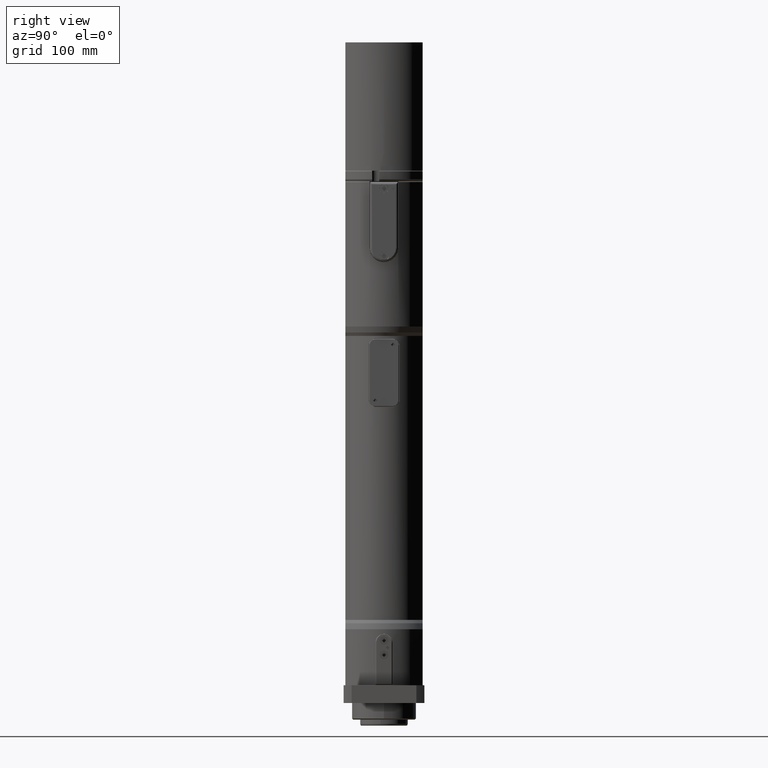
[diagram: clean part render]
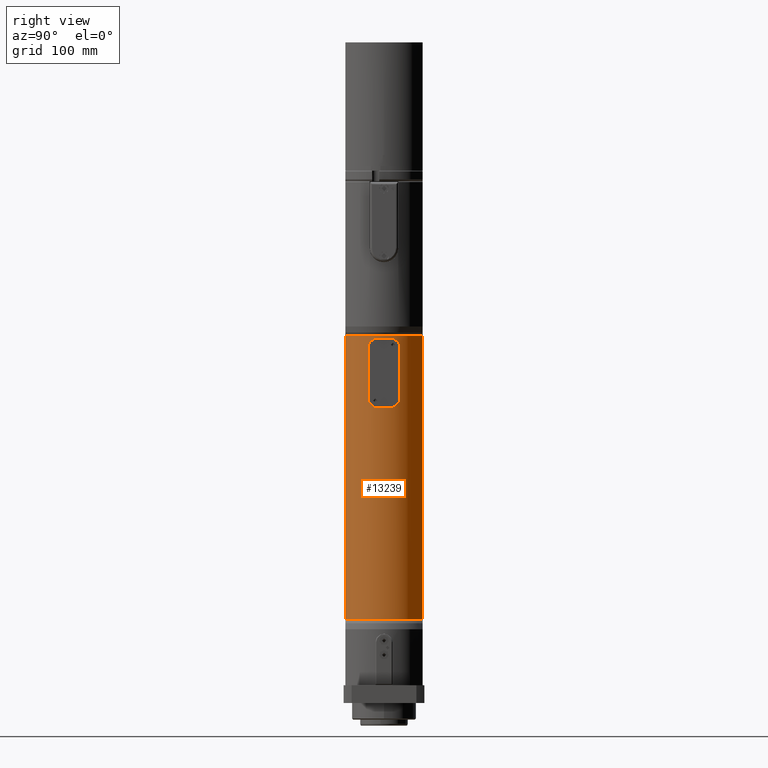
[diagram: same view with one face highlighted and labeled with its STEP entity id]
A machine part, right view. The second image highlights one B-rep face of the part: STEP entity #13239.
In plain terms, the highlighted cylindrical surface (partial cylindrical patch) has radius 34 mm, axis along (0, 0, 1).
Its self-contained STEP definition (entity closure, byte-faithful):
#902=LINE('',#24242,#1837);
#903=LINE('',#24246,#1838);
#904=LINE('',#24263,#1839);
#905=LINE('',#24289,#1840);
#1837=VECTOR('',#17706,239.);
#1838=VECTOR('',#17709,239.);
#1839=VECTOR('',#17714,48.);
#1840=VECTOR('',#17717,48.);
#2257=B_SPLINE_CURVE_WITH_KNOTS('',3,(#24252,#24253,#24254,#24255,#24256,
#24257,#24258,#24259,#24260,#24261),.UNSPECIFIED.,.F.,.F.,(4,2,2,2,4),(0.759588469608742,
0.956878938092134,1.15416940657553,1.34292940252404,1.53168939847256),
 .UNSPECIFIED.);
#2258=B_SPLINE_CURVE_WITH_KNOTS('',3,(#24265,#24266,#24267,#24268,#24269,
#24270,#24271,#24272,#24273,#24274),.UNSPECIFIED.,.F.,.F.,(4,2,2,2,4),(1.53168907801242,
1.72044907396094,1.90920906990946,2.10649953839285,2.30379000687624),
 .UNSPECIFIED.);
#2259=B_SPLINE_CURVE_WITH_KNOTS('',3,(#24278,#24279,#24280,#24281,#24282,
#24283,#24284,#24285,#24286,#24287),.UNSPECIFIED.,.F.,.F.,(4,2,2,2,4),(-0.772100928863819,
-0.574810460380427,-0.377519991897035,-0.188759995948518,0.),
 .UNSPECIFIED.);
#2260=B_SPLINE_CURVE_WITH_KNOTS('',3,(#24290,#24291,#24292,#24293,#24294,
#24295,#24296,#24297,#24298,#24299),.UNSPECIFIED.,.F.,.F.,(4,2,2,2,4),(0.,
0.188759995948518,0.377519991897035,0.574810460380427,0.772100928863819),
 .UNSPECIFIED.);
#2774=FACE_BOUND('',#4303,.T.);
#3394=FACE_OUTER_BOUND('',#4302,.T.);
#4302=EDGE_LOOP('',(#10606,#10607,#10608,#10609));
#4303=EDGE_LOOP('',(#10610,#10611,#10612,#10613,#10614,#10615,#10616,#10617));
#5062=CIRCLE('',#14522,34.);
#5063=CIRCLE('',#14523,34.);
#5064=CIRCLE('',#14524,34.);
#5065=CIRCLE('',#14525,34.);
#6093=VERTEX_POINT('',#24240);
#6094=VERTEX_POINT('',#24241);
#6095=VERTEX_POINT('',#24243);
#6096=VERTEX_POINT('',#24245);
#6097=VERTEX_POINT('',#24248);
#6098=VERTEX_POINT('',#24249);
#6099=VERTEX_POINT('',#24251);
#6100=VERTEX_POINT('',#24262);
#6101=VERTEX_POINT('',#24264);
#6102=VERTEX_POINT('',#24275);
#6103=VERTEX_POINT('',#24277);
#6104=VERTEX_POINT('',#24288);
#7681=EDGE_CURVE('',#6093,#6094,#902,.T.);
#7682=EDGE_CURVE('',#6095,#6094,#5062,.T.);
#7683=EDGE_CURVE('',#6095,#6096,#903,.T.);
#7684=EDGE_CURVE('',#6093,#6096,#5063,.T.);
#7685=EDGE_CURVE('',#6097,#6098,#5064,.T.);
#7686=EDGE_CURVE('',#6098,#6099,#2257,.T.);
#7687=EDGE_CURVE('',#6099,#6100,#904,.T.);
#7688=EDGE_CURVE('',#6100,#6101,#2258,.T.);
#7689=EDGE_CURVE('',#6101,#6102,#5065,.T.);
#7690=EDGE_CURVE('',#6102,#6103,#2259,.T.);
#7691=EDGE_CURVE('',#6103,#6104,#905,.T.);
#7692=EDGE_CURVE('',#6104,#6097,#2260,.T.);
#10606=ORIENTED_EDGE('',*,*,#7681,.T.);
#10607=ORIENTED_EDGE('',*,*,#7682,.F.);
#10608=ORIENTED_EDGE('',*,*,#7683,.T.);
#10609=ORIENTED_EDGE('',*,*,#7684,.F.);
#10610=ORIENTED_EDGE('',*,*,#7685,.T.);
#10611=ORIENTED_EDGE('',*,*,#7686,.T.);
#10612=ORIENTED_EDGE('',*,*,#7687,.T.);
#10613=ORIENTED_EDGE('',*,*,#7688,.T.);
#10614=ORIENTED_EDGE('',*,*,#7689,.T.);
#10615=ORIENTED_EDGE('',*,*,#7690,.T.);
#10616=ORIENTED_EDGE('',*,*,#7691,.T.);
#10617=ORIENTED_EDGE('',*,*,#7692,.T.);
#11832=CYLINDRICAL_SURFACE('',#14521,34.);
#13239=ADVANCED_FACE('',(#3394,#2774),#11832,.T.);
#14521=AXIS2_PLACEMENT_3D('',#24239,#17704,#17705);
#14522=AXIS2_PLACEMENT_3D('',#24244,#17707,#17708);
#14523=AXIS2_PLACEMENT_3D('',#24247,#17710,#17711);
#14524=AXIS2_PLACEMENT_3D('',#24250,#17712,#17713);
#14525=AXIS2_PLACEMENT_3D('',#24276,#17715,#17716);
#17704=DIRECTION('center_axis',(0.,0.,1.));
#17705=DIRECTION('ref_axis',(-1.,0.,0.));
#17706=DIRECTION('',(0.,0.,1.));
#17707=DIRECTION('center_axis',(0.,0.,1.));
#17708=DIRECTION('ref_axis',(-1.,0.,0.));
#17709=DIRECTION('',(0.,0.,-1.));
#17710=DIRECTION('center_axis',(0.,0.,-1.));
#17711=DIRECTION('ref_axis',(-1.,0.,0.));
#17712=DIRECTION('center_axis',(0.,0.,1.));
#17713=DIRECTION('ref_axis',(-1.,0.,0.));
#17714=DIRECTION('',(0.,0.,-1.));
#17715=DIRECTION('center_axis',(0.,0.,-1.));
#17716=DIRECTION('ref_axis',(-1.,0.,0.));
#17717=DIRECTION('',(0.,0.,1.));
#24239=CARTESIAN_POINT('Origin',(0.,0.,84.));
#24240=CARTESIAN_POINT('',(9.98749217771911,32.5,84.));
#24241=CARTESIAN_POINT('',(9.98749217771911,32.5,323.));
#24242=CARTESIAN_POINT('',(9.98749217771911,32.5,84.));
#24243=CARTESIAN_POINT('',(9.98749217771903,-32.5,323.));
#24244=CARTESIAN_POINT('Origin',(0.,0.,323.));
#24245=CARTESIAN_POINT('',(9.98749217771903,-32.5,84.));
#24246=CARTESIAN_POINT('',(9.98749217771903,-32.5,84.));
#24247=CARTESIAN_POINT('Origin',(0.,0.,84.));
#24248=CARTESIAN_POINT('',(33.0454232837166,-8.,321.));
#24249=CARTESIAN_POINT('',(33.0454232837166,8.,321.));
#24250=CARTESIAN_POINT('Origin',(0.,0.,321.));
#24251=CARTESIAN_POINT('',(31.41655614481,13.,316.));
#24252=CARTESIAN_POINT('Ctrl Pts',(33.0454232837166,8.,321.));
#24253=CARTESIAN_POINT('Ctrl Pts',(32.8906856613767,8.6391712785173,321.));
#24254=CARTESIAN_POINT('Ctrl Pts',(32.7052635615763,9.31594182220457,320.870454557452));
#24255=CARTESIAN_POINT('Ctrl Pts',(32.325997565121,10.557031691372,320.349094030366));
#24256=CARTESIAN_POINT('Ctrl Pts',(32.1330572202445,11.1216973112429,319.95744646348));
#24257=CARTESIAN_POINT('Ctrl Pts',(31.8168900309405,11.9954968996403,319.067246149049));
#24258=CARTESIAN_POINT('Ctrl Pts',(31.670490360415,12.3714684569533,318.514907906374));
#24259=CARTESIAN_POINT('Ctrl Pts',(31.4696109492567,12.8738797601817,317.296067866827));
#24260=CARTESIAN_POINT('Ctrl Pts',(31.41655614481,13.,316.629199986495));
#24261=CARTESIAN_POINT('Ctrl Pts',(31.41655614481,13.,316.));
#24262=CARTESIAN_POINT('',(31.41655614481,13.,268.));
#24263=CARTESIAN_POINT('',(31.41655614481,13.,84.));
#24264=CARTESIAN_POINT('',(33.0454232837166,8.,263.));
#24265=CARTESIAN_POINT('Ctrl Pts',(31.41655614481,13.,268.));
#24266=CARTESIAN_POINT('Ctrl Pts',(31.41655614481,13.,267.370800013505));
#24267=CARTESIAN_POINT('Ctrl Pts',(31.4696109492567,12.8738797601816,266.703932133173));
#24268=CARTESIAN_POINT('Ctrl Pts',(31.670490360415,12.3714684569533,265.485092093626));
#24269=CARTESIAN_POINT('Ctrl Pts',(31.8168900309405,11.9954968996403,264.932753850951));
#24270=CARTESIAN_POINT('Ctrl Pts',(32.1330572202445,11.1216973112429,264.04255353652));
#24271=CARTESIAN_POINT('Ctrl Pts',(32.325997565121,10.5570316913719,263.650905969634));
#24272=CARTESIAN_POINT('Ctrl Pts',(32.7052635615763,9.3159418222046,263.129545442548));
#24273=CARTESIAN_POINT('Ctrl Pts',(32.8906856613767,8.6391712785173,263.));
#24274=CARTESIAN_POINT('Ctrl Pts',(33.0454232837166,8.,263.));
#24275=CARTESIAN_POINT('',(33.0454232837166,-8.,263.));
#24276=CARTESIAN_POINT('Origin',(0.,0.,263.));
#24277=CARTESIAN_POINT('',(31.41655614481,-13.,268.));
#24278=CARTESIAN_POINT('Ctrl Pts',(33.0454232837166,-8.,263.));
#24279=CARTESIAN_POINT('Ctrl Pts',(32.8906856613767,-8.6391712785173,263.));
#24280=CARTESIAN_POINT('Ctrl Pts',(32.7052635615763,-9.3159418222046,263.129545442548));
#24281=CARTESIAN_POINT('Ctrl Pts',(32.325997565121,-10.5570316913719,263.650905969634));
#24282=CARTESIAN_POINT('Ctrl Pts',(32.1330572202445,-11.1216973112429,264.04255353652));
#24283=CARTESIAN_POINT('Ctrl Pts',(31.8168900309405,-11.9954968996403,264.932753850951));
#24284=CARTESIAN_POINT('Ctrl Pts',(31.670490360415,-12.3714684569533,265.485092093626));
#24285=CARTESIAN_POINT('Ctrl Pts',(31.4696109492567,-12.8738797601816,266.703932133173));
#24286=CARTESIAN_POINT('Ctrl Pts',(31.41655614481,-13.,267.370800013505));
#24287=CARTESIAN_POINT('Ctrl Pts',(31.41655614481,-13.,268.));
#24288=CARTESIAN_POINT('',(31.41655614481,-13.,316.));
#24289=CARTESIAN_POINT('',(31.41655614481,-13.,84.));
#24290=CARTESIAN_POINT('Ctrl Pts',(31.41655614481,-13.,316.));
#24291=CARTESIAN_POINT('Ctrl Pts',(31.41655614481,-13.,316.629199986495));
#24292=CARTESIAN_POINT('Ctrl Pts',(31.4696109492567,-12.8738797601817,317.296067866827));
#24293=CARTESIAN_POINT('Ctrl Pts',(31.670490360415,-12.3714684569533,318.514907906374));
#24294=CARTESIAN_POINT('Ctrl Pts',(31.8168900309405,-11.9954968996403,319.067246149049));
#24295=CARTESIAN_POINT('Ctrl Pts',(32.1330572202445,-11.1216973112429,319.95744646348));
#24296=CARTESIAN_POINT('Ctrl Pts',(32.325997565121,-10.5570316913719,320.349094030366));
#24297=CARTESIAN_POINT('Ctrl Pts',(32.7052635615763,-9.31594182220457,320.870454557452));
#24298=CARTESIAN_POINT('Ctrl Pts',(32.8906856613767,-8.6391712785173,321.));
#24299=CARTESIAN_POINT('Ctrl Pts',(33.0454232837166,-8.,321.));